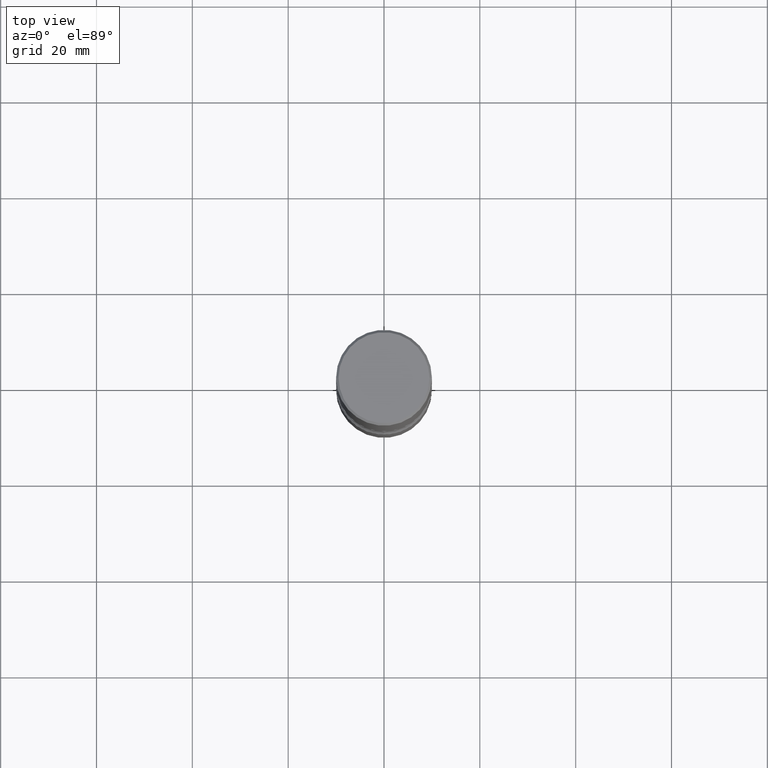
[diagram: clean part render]
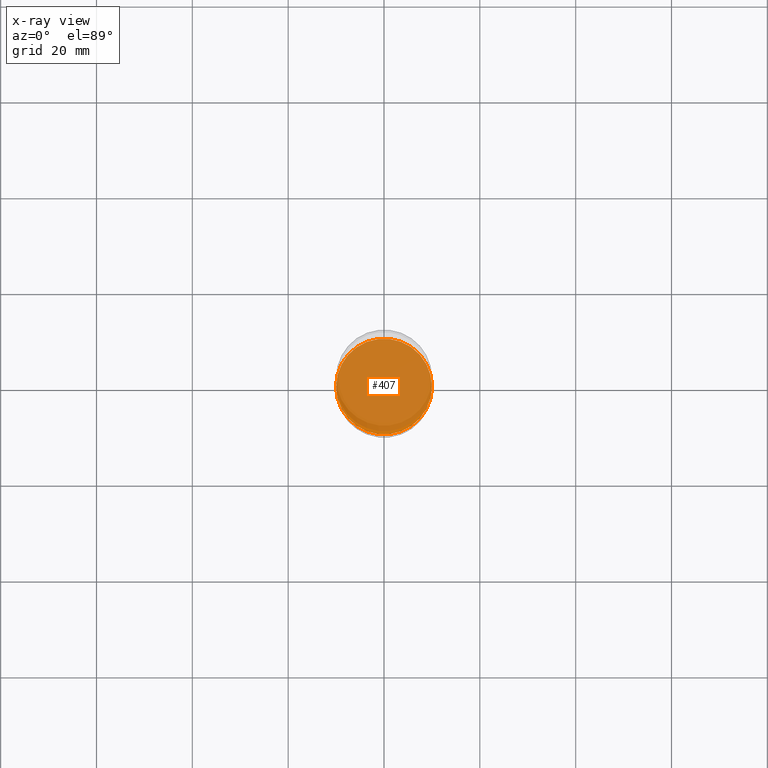
[diagram: x-ray — body ghosted, one internal face saturated and labeled with its STEP entity id]
A machine part, top view, then the same camera in x-ray: the body is ghosted and one INTERNAL B-rep face — a face not visible from any outside direction — is saturated and labeled: STEP entity #407.
In plain terms, the highlighted planar face has unit normal (0, -0, -1).
Its self-contained STEP definition (entity closure, byte-faithful):
#8 = CIRCLE ( 'NONE', #68, 0.3937000000000002720 ) ;
#29 = AXIS2_PLACEMENT_3D ( 'NONE', #512, #526, #515 ) ;
#33 = DIRECTION ( 'NONE',  ( -2.445468806185136597E-29, 3.491481338843145583E-15, 1.000000000000000000 ) ) ;
#47 = VERTEX_POINT ( 'NONE', #531 ) ;
#68 = AXIS2_PLACEMENT_3D ( 'NONE', #329, #187, #357 ) ;
#158 = CIRCLE ( 'NONE', #248, 0.3937000000000002720 ) ;
#168 = VERTEX_POINT ( 'NONE', #460 ) ;
#169 = FACE_OUTER_BOUND ( 'NONE', #255, .T. ) ;
#187 = DIRECTION ( 'NONE',  ( -2.445468806185136597E-29, 3.491481338843145583E-15, 1.000000000000000000 ) ) ;
#213 = EDGE_CURVE ( 'NONE', #47, #168, #158, .T. ) ;
#248 = AXIS2_PLACEMENT_3D ( 'NONE', #414, #33, #374 ) ;
#255 = EDGE_LOOP ( 'NONE', ( #316, #267 ) ) ;
#267 = ORIENTED_EDGE ( 'NONE', *, *, #213, .T. ) ;
#316 = ORIENTED_EDGE ( 'NONE', *, *, #491, .T. ) ;
#329 = CARTESIAN_POINT ( 'NONE',  ( 1.030178189293550378E-28, -1.470821428801063089E-14, -4.212599999999998346 ) ) ;
#355 = PLANE ( 'NONE',  #29 ) ;
#357 = DIRECTION ( 'NONE',  ( 1.000000000000000000, -6.982962677686269077E-15, 0.000000000000000000 ) ) ;
#374 = DIRECTION ( 'NONE',  ( 1.000000000000000000, -6.982962677686269077E-15, 0.000000000000000000 ) ) ;
#407 = ADVANCED_FACE ( 'NONE', ( #169 ), #355, .F. ) ;
#414 = CARTESIAN_POINT ( 'NONE',  ( 1.030178189293550378E-28, -1.470821428801063089E-14, -4.212599999999998346 ) ) ;
#460 = CARTESIAN_POINT ( 'NONE',  ( 0.3937000000000002720, -1.745740669421571411E-14, -4.212599999999998346 ) ) ;
#491 = EDGE_CURVE ( 'NONE', #168, #47, #8, .T. ) ;
#512 = CARTESIAN_POINT ( 'NONE',  ( 1.030178189293550378E-28, -1.470821428801063089E-14, -4.212599999999998346 ) ) ;
#515 = DIRECTION ( 'NONE',  ( -1.000000000000000000, 6.982962677686265922E-15, -4.876176775795935793E-29 ) ) ;
#526 = DIRECTION ( 'NONE',  ( 2.438088387897960049E-29, -3.491481338843145188E-15, -1.000000000000000000 ) ) ;
#531 = CARTESIAN_POINT ( 'NONE',  ( -0.3937000000000002720, -1.459121776115299839E-14, -4.212599999999998346 ) ) ;